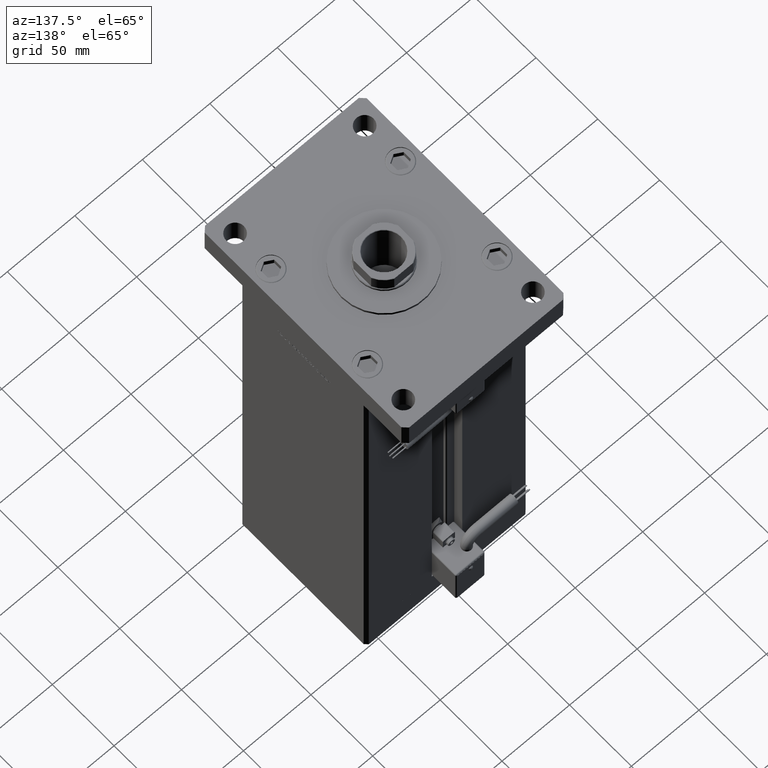
[diagram: clean part render]
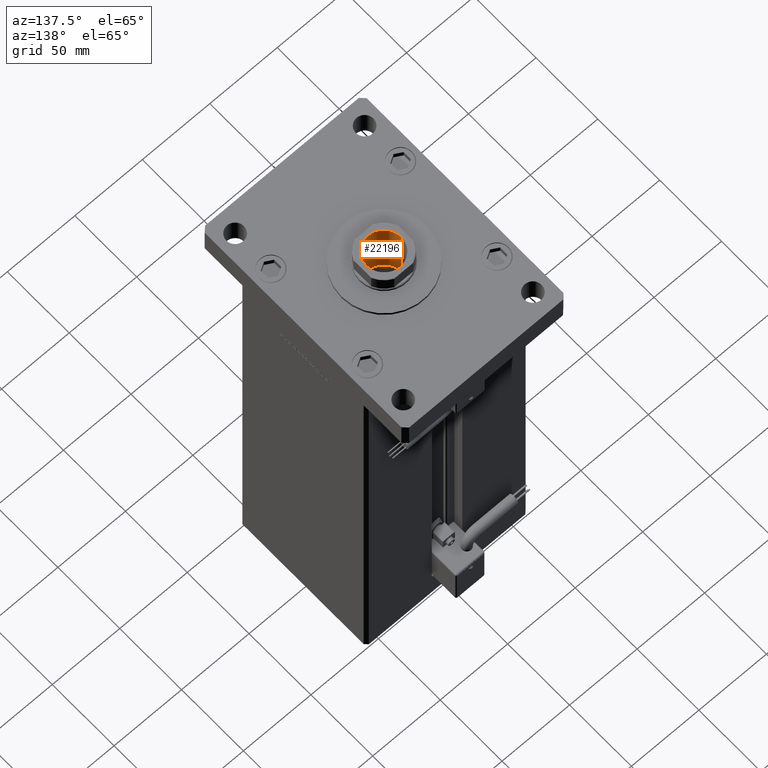
[diagram: same view with one face highlighted and labeled with its STEP entity id]
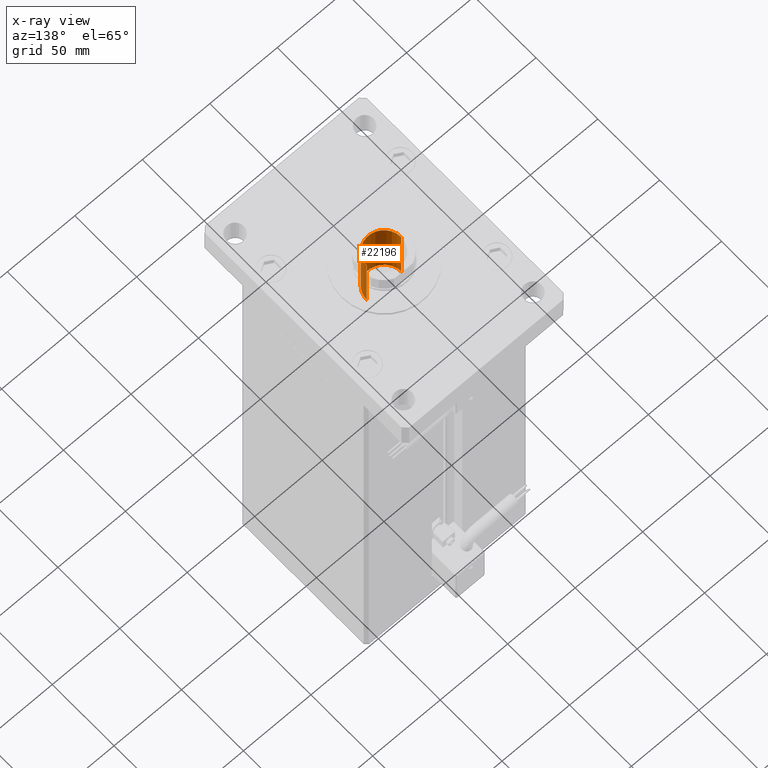
[diagram: x-ray of the same camera — body ghosted, the highlighted face saturated]
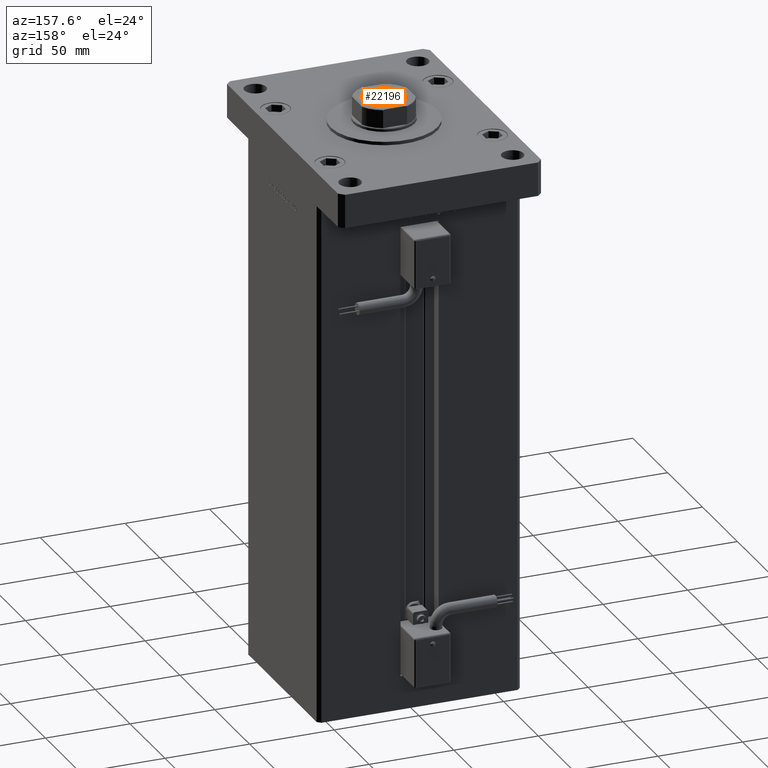
[diagram: same view with one face highlighted and labeled with its STEP entity id]
A machine part, auxiliary view. The second image highlights one B-rep face of the part: STEP entity #22196.
The next image is the same camera in x-ray: the body ghosted, the highlighted face saturated — about 1% of this face is hidden behind the body in this view.
A second angle (auxiliary view) of the same face is appended — the face is thin or edge-on in the first view.
In plain terms, the highlighted cylindrical surface (edge-blend (fillet) strip) has radius 12.75 mm, axis along (0, 0, 1).
Its self-contained STEP definition (entity closure, byte-faithful):
#175 = DIRECTION ( 'NONE',  ( 1.000000000000000000, 0.000000000000000000, 0.000000000000000000 ) ) ;
#688 = DIRECTION ( 'NONE',  ( 0.000000000000000000, 0.000000000000000000, 1.000000000000000000 ) ) ;
#821 = CARTESIAN_POINT ( 'NONE',  ( -12.74999999999999467, 1.561424668912874519E-15, 308.9499999999999318 ) ) ;
#2113 = CARTESIAN_POINT ( 'NONE',  ( 12.74999999999999112, 0.000000000000000000, 264.2500000000000568 ) ) ;
#2277 = CARTESIAN_POINT ( 'NONE',  ( -12.74999999999999467, 1.561424668912874519E-15, 309.2500000000000000 ) ) ;
#5546 = ORIENTED_EDGE ( 'NONE', *, *, #45950, .F. ) ;
#11949 = CARTESIAN_POINT ( 'NONE',  ( 0.000000000000000000, 0.000000000000000000, 309.2500000000000000 ) ) ;
#12163 = EDGE_CURVE ( 'NONE', #42108, #14423, #57905, .T. ) ;
#12241 = DIRECTION ( 'NONE',  ( -0.000000000000000000, -0.000000000000000000, 1.000000000000000000 ) ) ;
#13617 = DIRECTION ( 'NONE',  ( 1.000000000000000000, 0.000000000000000000, 0.000000000000000000 ) ) ;
#14423 = VERTEX_POINT ( 'NONE', #29285 ) ;
#16850 = VERTEX_POINT ( 'NONE', #2113 ) ;
#19873 = AXIS2_PLACEMENT_3D ( 'NONE', #45606, #54423, #175 ) ;
#21369 = LINE ( 'NONE', #2277, #37922 ) ;
#22196 = ADVANCED_FACE ( 'NONE', ( #42730 ), #25161, .F. ) ;
#22550 = CIRCLE ( 'NONE', #19873, 12.74999999999999112 ) ;
#22593 = VECTOR ( 'NONE', #29270, 1000.000000000000000 ) ;
#22652 = EDGE_LOOP ( 'NONE', ( #5546, #25345, #26200, #54233 ) ) ;
#25161 = CYLINDRICAL_SURFACE ( 'NONE', #36893, 12.74999999999999467 ) ;
#25345 = ORIENTED_EDGE ( 'NONE', *, *, #56851, .T. ) ;
#26200 = ORIENTED_EDGE ( 'NONE', *, *, #12163, .T. ) ;
#29270 = DIRECTION ( 'NONE',  ( -0.000000000000000000, -0.000000000000000000, 1.000000000000000000 ) ) ;
#29285 = CARTESIAN_POINT ( 'NONE',  ( 12.74999999999999467, 0.000000000000000000, 308.9499999999999318 ) ) ;
#29868 = DIRECTION ( 'NONE',  ( -0.000000000000000000, -0.000000000000000000, 1.000000000000000000 ) ) ;
#31216 = CARTESIAN_POINT ( 'NONE',  ( 0.000000000000000000, 0.000000000000000000, 308.9499999999999318 ) ) ;
#33913 = CARTESIAN_POINT ( 'NONE',  ( -12.74999999999999112, 1.561424668912874125E-15, 264.2500000000000568 ) ) ;
#36893 = AXIS2_PLACEMENT_3D ( 'NONE', #11949, #12241, #48005 ) ;
#37922 = VECTOR ( 'NONE', #29868, 1000.000000000000000 ) ;
#42108 = VERTEX_POINT ( 'NONE', #821 ) ;
#42730 = FACE_OUTER_BOUND ( 'NONE', #22652, .T. ) ;
#43823 = AXIS2_PLACEMENT_3D ( 'NONE', #31216, #688, #13617 ) ;
#45606 = CARTESIAN_POINT ( 'NONE',  ( 0.000000000000000000, 0.000000000000000000, 264.2500000000000568 ) ) ;
#45950 = EDGE_CURVE ( 'NONE', #48107, #16850, #22550, .T. ) ;
#47128 = EDGE_CURVE ( 'NONE', #16850, #14423, #47426, .T. ) ;
#47426 = LINE ( 'NONE', #51258, #22593 ) ;
#48005 = DIRECTION ( 'NONE',  ( 1.000000000000000000, 0.000000000000000000, 0.000000000000000000 ) ) ;
#48107 = VERTEX_POINT ( 'NONE', #33913 ) ;
#51258 = CARTESIAN_POINT ( 'NONE',  ( 12.74999999999999467, 0.000000000000000000, 309.2500000000000000 ) ) ;
#54233 = ORIENTED_EDGE ( 'NONE', *, *, #47128, .F. ) ;
#54423 = DIRECTION ( 'NONE',  ( -0.000000000000000000, -0.000000000000000000, 1.000000000000000000 ) ) ;
#56851 = EDGE_CURVE ( 'NONE', #48107, #42108, #21369, .T. ) ;
#57905 = CIRCLE ( 'NONE', #43823, 12.74999999999999467 ) ;